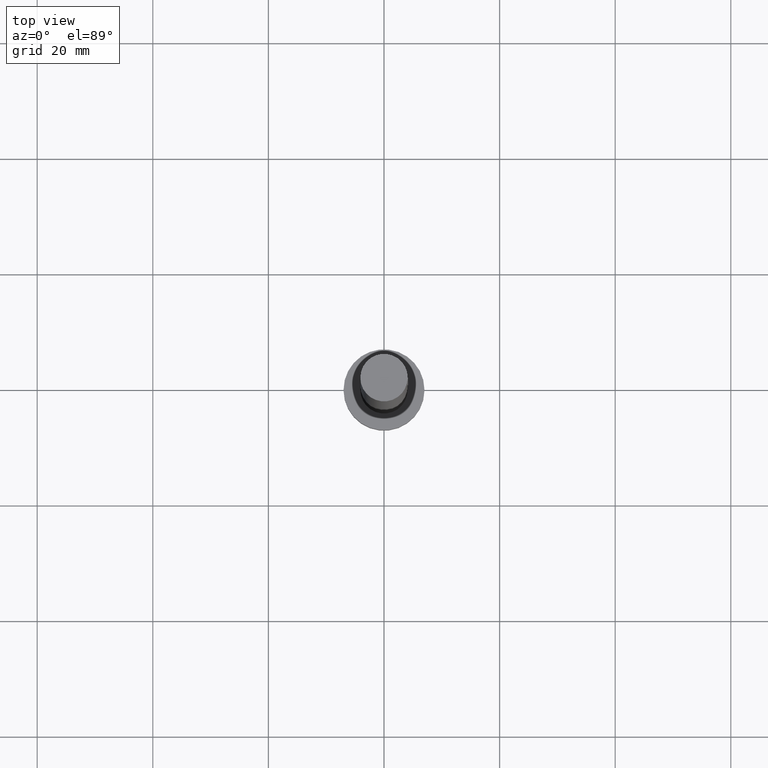
[diagram: clean part render]
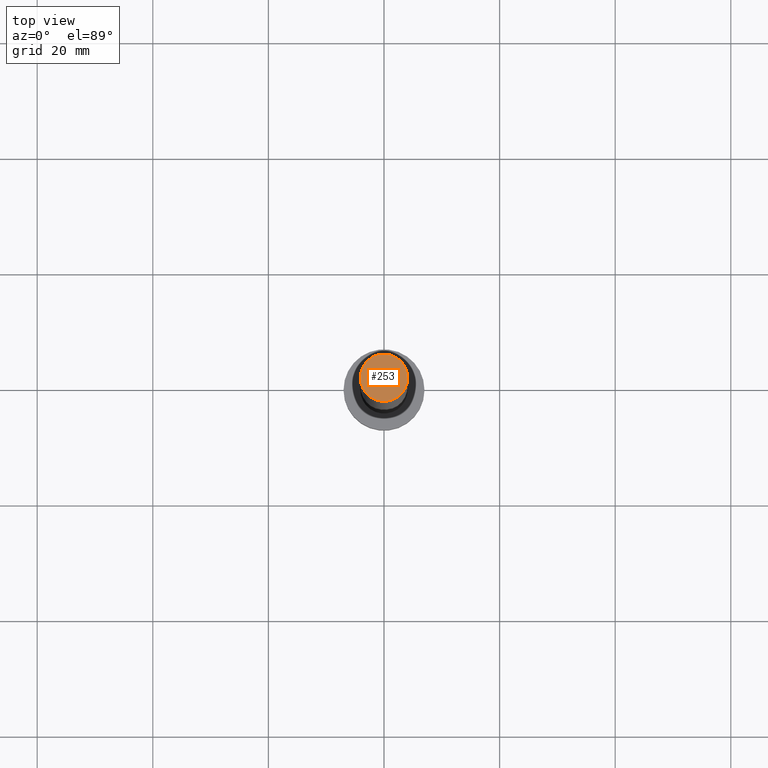
[diagram: same view with one face highlighted and labeled with its STEP entity id]
A machine part, top view. The second image highlights one B-rep face of the part: STEP entity #253.
In plain terms, the highlighted planar face has unit normal (0, 0, 1).
Its self-contained STEP definition (entity closure, byte-faithful):
#8 = DIRECTION ( 'NONE',  ( 1.000000000000000000, 0.000000000000000000, 0.000000000000000000 ) ) ;
#12 = AXIS2_PLACEMENT_3D ( 'NONE', #190, #28, #8 ) ;
#14 = CARTESIAN_POINT ( 'NONE',  ( 4.099999999999999645, 5.021051876504147385E-16, 125.0000000000000000 ) ) ;
#28 = DIRECTION ( 'NONE',  ( 0.000000000000000000, 0.000000000000000000, 1.000000000000000000 ) ) ;
#64 = DIRECTION ( 'NONE',  ( 1.000000000000000000, 0.000000000000000000, -0.000000000000000000 ) ) ;
#84 = CARTESIAN_POINT ( 'NONE',  ( 0.000000000000000000, 0.000000000000000000, 125.0000000000000000 ) ) ;
#88 = EDGE_LOOP ( 'NONE', ( #141, #178 ) ) ;
#111 = EDGE_CURVE ( 'NONE', #215, #137, #211, .T. ) ;
#114 = DIRECTION ( 'NONE',  ( 0.000000000000000000, 0.000000000000000000, 1.000000000000000000 ) ) ;
#131 = CARTESIAN_POINT ( 'NONE',  ( 0.000000000000000000, 0.000000000000000000, 125.0000000000000000 ) ) ;
#133 = DIRECTION ( 'NONE',  ( 1.000000000000000000, 0.000000000000000000, 0.000000000000000000 ) ) ;
#137 = VERTEX_POINT ( 'NONE', #186 ) ;
#140 = AXIS2_PLACEMENT_3D ( 'NONE', #131, #176, #133 ) ;
#141 = ORIENTED_EDGE ( 'NONE', *, *, #237, .T. ) ;
#148 = AXIS2_PLACEMENT_3D ( 'NONE', #84, #114, #64 ) ;
#159 = CIRCLE ( 'NONE', #140, 4.099999999999999645 ) ;
#176 = DIRECTION ( 'NONE',  ( 0.000000000000000000, 0.000000000000000000, 1.000000000000000000 ) ) ;
#177 = FACE_OUTER_BOUND ( 'NONE', #88, .T. ) ;
#178 = ORIENTED_EDGE ( 'NONE', *, *, #111, .T. ) ;
#186 = CARTESIAN_POINT ( 'NONE',  ( -4.099999999999999645, 0.000000000000000000, 125.0000000000000000 ) ) ;
#190 = CARTESIAN_POINT ( 'NONE',  ( 0.000000000000000000, 0.000000000000000000, 125.0000000000000000 ) ) ;
#211 = CIRCLE ( 'NONE', #12, 4.099999999999999645 ) ;
#215 = VERTEX_POINT ( 'NONE', #14 ) ;
#235 = PLANE ( 'NONE',  #148 ) ;
#237 = EDGE_CURVE ( 'NONE', #137, #215, #159, .T. ) ;
#253 = ADVANCED_FACE ( 'NONE', ( #177 ), #235, .T. ) ;